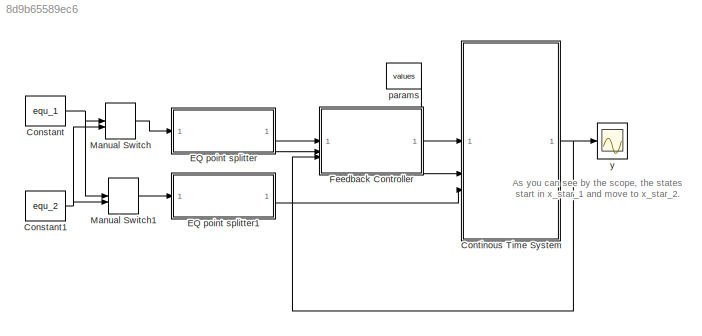
MODEL slx_8d9b65589ec6
KIND model
CONFIG AbsTol = auto
CONFIG EnableMultiTasking = off
CONFIG FixedStep = 0.01
CONFIG MaxStep = auto
CONFIG MinStep = auto
CONFIG RelTol = 1e-3
CONFIG SampleTimeConstraint = Unconstrained
CONFIG SolverName = FixedStepAuto
CONFIG StartTime = 0.0
CONFIG StopTime = 20
BLOCK [Constant] Constant
  Value = equ_1
BLOCK [Constant] Constant1
  Value = equ_2
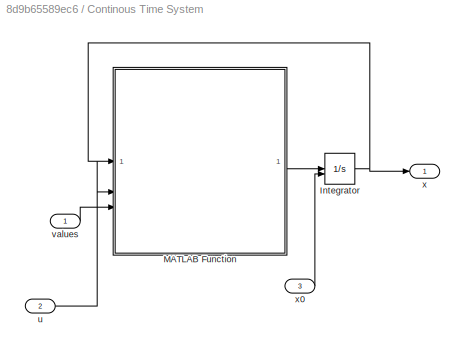
BLOCK [SubSystem] Continous Time System
BLOCK [Integrator] Continous Time System/Integrator
  InitialConditionSource = external
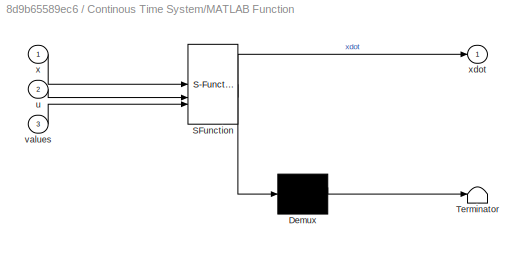
BLOCK [SubSystem] Continous Time System/MATLAB Function
  ErrorFcn = Stateflow.Translate.translate
  PermitHierarchicalResolution = ExplicitOnly
  SFBlockType = MATLAB Function
  TreatAsAtomicUnit = on
BLOCK [Demux] Continous Time System/MATLAB Function/ Demux 
  Outputs = 1
BLOCK [S-Function] Continous Time System/MATLAB Function/ SFunction 
  EnableBusSupport = on
  FunctionName = sf_sfun
  PortCounts = [3 2]
  SFcnIsStateOwnerBlock = off
  SFunctionDeploymentMode = off
  Tag = Stateflow S-Function 2
BLOCK [Terminator] Continous Time System/MATLAB Function/ Terminator 
BLOCK [Inport] Continous Time System/MATLAB Function/u
  Port = 2
BLOCK [Inport] Continous Time System/MATLAB Function/values
  Port = 3
BLOCK [Inport] Continous Time System/MATLAB Function/x
BLOCK [Outport] Continous Time System/MATLAB Function/xdot
BLOCK [Inport] Continous Time System/u
  Port = 2
BLOCK [Inport] Continous Time System/values
BLOCK [Outport] Continous Time System/x
BLOCK [Inport] Continous Time System/x0
  Port = 3
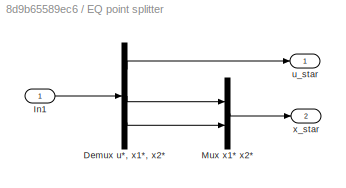
BLOCK [SubSystem] EQ point splitter
BLOCK [Demux] EQ point splitter/Demux u*, x1*, x2*
  Outputs = 3
BLOCK [Inport] EQ point splitter/In1
BLOCK [Mux] EQ point splitter/Mux x1* x2*
  DisplayOption = bar
  Inputs = 2
BLOCK [Outport] EQ point splitter/u_star
BLOCK [Outport] EQ point splitter/x_star
  Port = 2
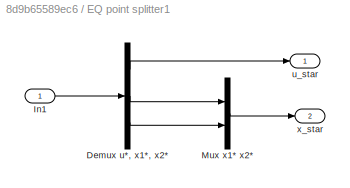
BLOCK [SubSystem] EQ point splitter1
BLOCK [Demux] EQ point splitter1/Demux u*, x1*, x2*
  Outputs = 3
BLOCK [Inport] EQ point splitter1/In1
BLOCK [Mux] EQ point splitter1/Mux x1* x2*
  DisplayOption = bar
  Inputs = 2
BLOCK [Outport] EQ point splitter1/u_star
BLOCK [Outport] EQ point splitter1/x_star
  Port = 2
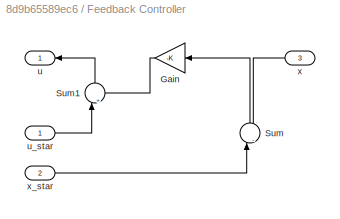
BLOCK [SubSystem] Feedback Controller
BLOCK [Gain] Feedback Controller/Gain
  Gain = -K
  Multiplication = Matrix(K*u)
  NameLocation = top
BLOCK [Sum] Feedback Controller/Sum
  Inputs = |-+
  NameLocation = right
BLOCK [Sum] Feedback Controller/Sum1
  Inputs = |++
  NameLocation = right
BLOCK [Outport] Feedback Controller/u
  NameLocation = top
BLOCK [Inport] Feedback Controller/u_star
BLOCK [Inport] Feedback Controller/x
  NameLocation = top
  Port = 3
BLOCK [Inport] Feedback Controller/x_star
  Port = 2
BLOCK [ManualSwitch] Manual Switch
  CurrentSetting = 0
BLOCK [ManualSwitch] Manual Switch1
BLOCK [Constant] params
  Value = values
BLOCK [Scope] y
  Floating = off
  NumInputPorts = 1
  ScopeSpecificationString = Simulink.scopes.TimeScopeBlockCfg('CurrentConfiguration', extmgr.ConfigurationSet(extmgr.Configuration('Core','General UI',true),extmgr.Configuration('Core','Source UI',true),extmgr.Configuration('Sources','WiredSimulink',true),extmgr.Configuration('Visuals','Time Domain',true,'SerializedDisplays',{struct('MinYLimReal','1.3125','MaxYLimReal','33.1875','YLabelReal','','MinYLimMag','1.3125','MaxYLim...<+1532ch>
ANNOTATION (root): As you can see by the scope, the states start in x_star_1 and move to x_star_2.
NET Constant1:1 -> Manual Switch1:2, Manual Switch:2
NET Constant:1 -> Manual Switch1:1, Manual Switch:1
NET Continous Time System/Integrator:1 -> Continous Time System/MATLAB Function:1, Continous Time System/x:1
LINE Continous Time System/MATLAB Function:1 -> Continous Time System/Integrator:1
LINE Continous Time System/u:1 -> Continous Time System/MATLAB Function:2
LINE Continous Time System/values:1 -> Continous Time System/MATLAB Function:3
LINE Continous Time System/x0:1 -> Continous Time System/Integrator:2
NET Continous Time System:1 -> Feedback Controller:3, y:1
LINE EQ point splitter/Demux u*, x1*, x2*:1 -> EQ point splitter/u_star:1
LINE EQ point splitter/Demux u*, x1*, x2*:2 -> EQ point splitter/Mux x1* x2*:1
LINE EQ point splitter/Demux u*, x1*, x2*:3 -> EQ point splitter/Mux x1* x2*:2
LINE EQ point splitter/In1:1 -> EQ point splitter/Demux u*, x1*, x2*:1
LINE EQ point splitter/Mux x1* x2*:1 -> EQ point splitter/x_star:1
LINE EQ point splitter1/Demux u*, x1*, x2*:1 -> EQ point splitter1/u_star:1
LINE EQ point splitter1/Demux u*, x1*, x2*:2 -> EQ point splitter1/Mux x1* x2*:1
LINE EQ point splitter1/Demux u*, x1*, x2*:3 -> EQ point splitter1/Mux x1* x2*:2
LINE EQ point splitter1/In1:1 -> EQ point splitter1/Demux u*, x1*, x2*:1
LINE EQ point splitter1/Mux x1* x2*:1 -> EQ point splitter1/x_star:1
LINE EQ point splitter1:2 -> Continous Time System:3
LINE EQ point splitter:1 -> Feedback Controller:1
LINE EQ point splitter:2 -> Feedback Controller:2
LINE Feedback Controller/Gain:1 -> Feedback Controller/Sum1:2
LINE Feedback Controller/Sum1:1 -> Feedback Controller/u:1
LINE Feedback Controller/Sum:1 -> Feedback Controller/Gain:1
LINE Feedback Controller/u_star:1 -> Feedback Controller/Sum1:1
LINE Feedback Controller/x:1 -> Feedback Controller/Sum:2
LINE Feedback Controller/x_star:1 -> Feedback Controller/Sum:1
LINE Feedback Controller:1 -> Continous Time System:2
LINE Manual Switch1:1 -> EQ point splitter1:1
LINE Manual Switch:1 -> EQ point splitter:1
LINE params:1 -> Continous Time System:1
note: NET lines group one-source signal fan-out (src -> all destinations, sorted); 1:1 wires keep LINE
CHART Continous Time System/MATLAB Function states=1 transitions=1
  STATE_LABEL 'eML_blk_kernel()'
  STATE_LABEL 'SCRIPT:\nfunction xdot = fcn(x, u, values)\n\nd = values(1);\nlambda = values(2);\n\nxdot = [-d*x(1)*abs(x(1)) + x(2);\n         -lambda*x(2) + u];'
CHART  states=0 transitions=0
